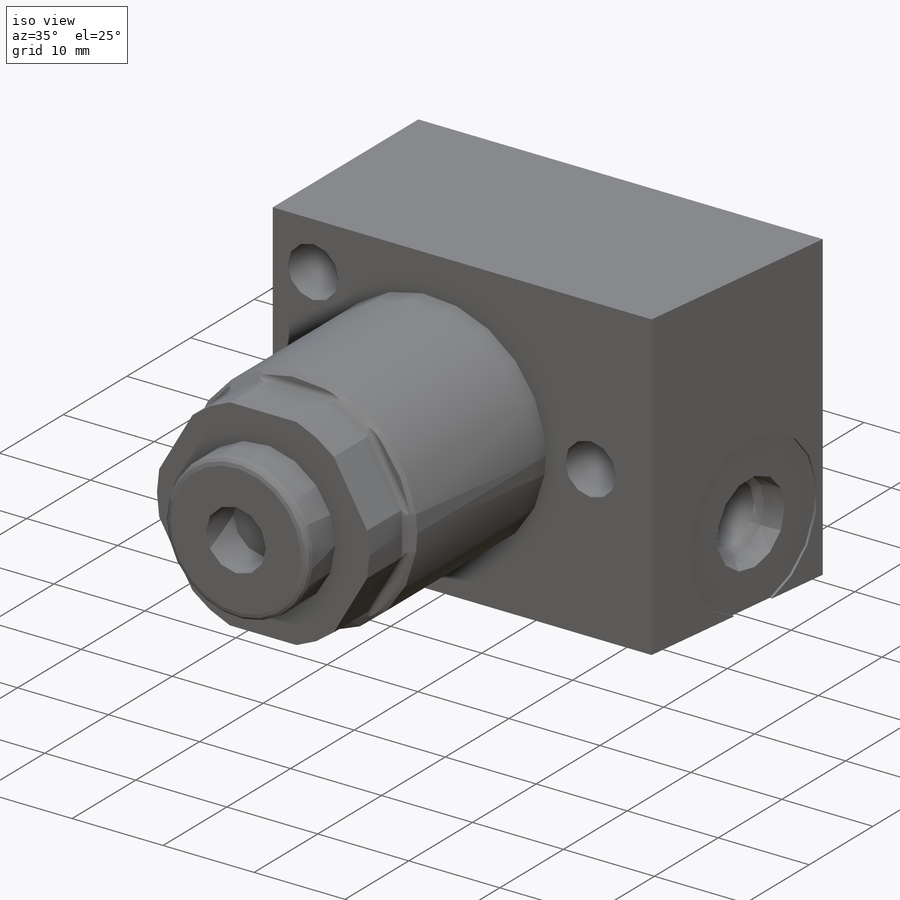
[diagram: iso view]
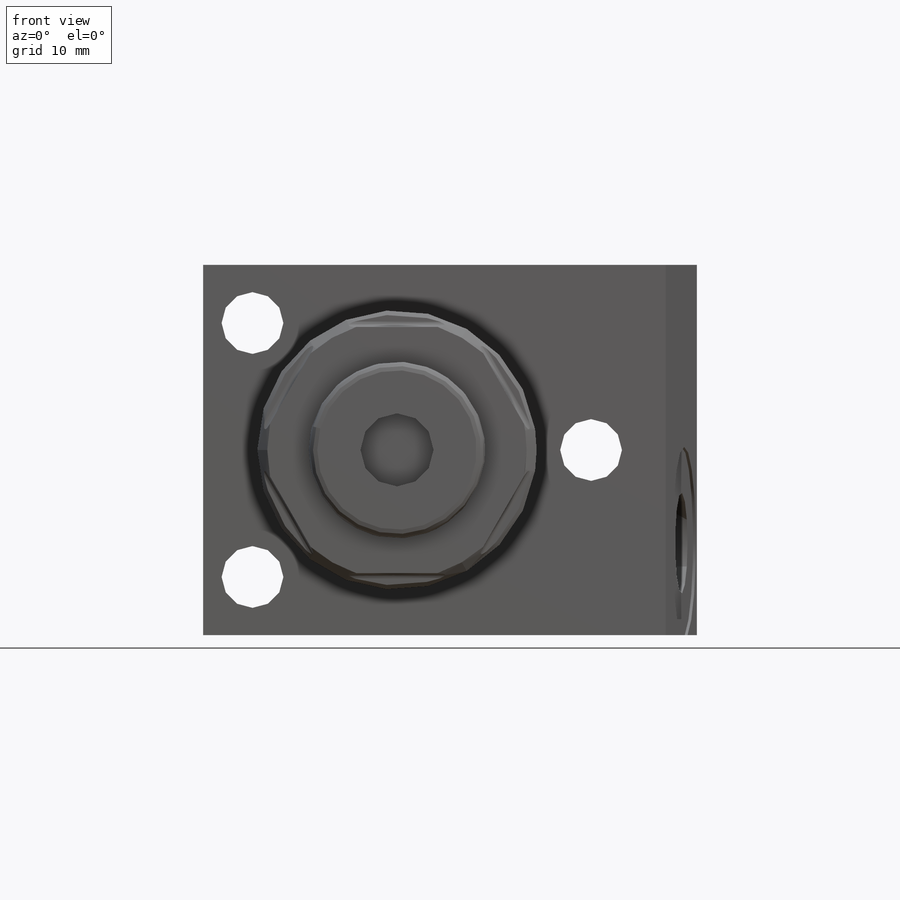
[diagram: front view]
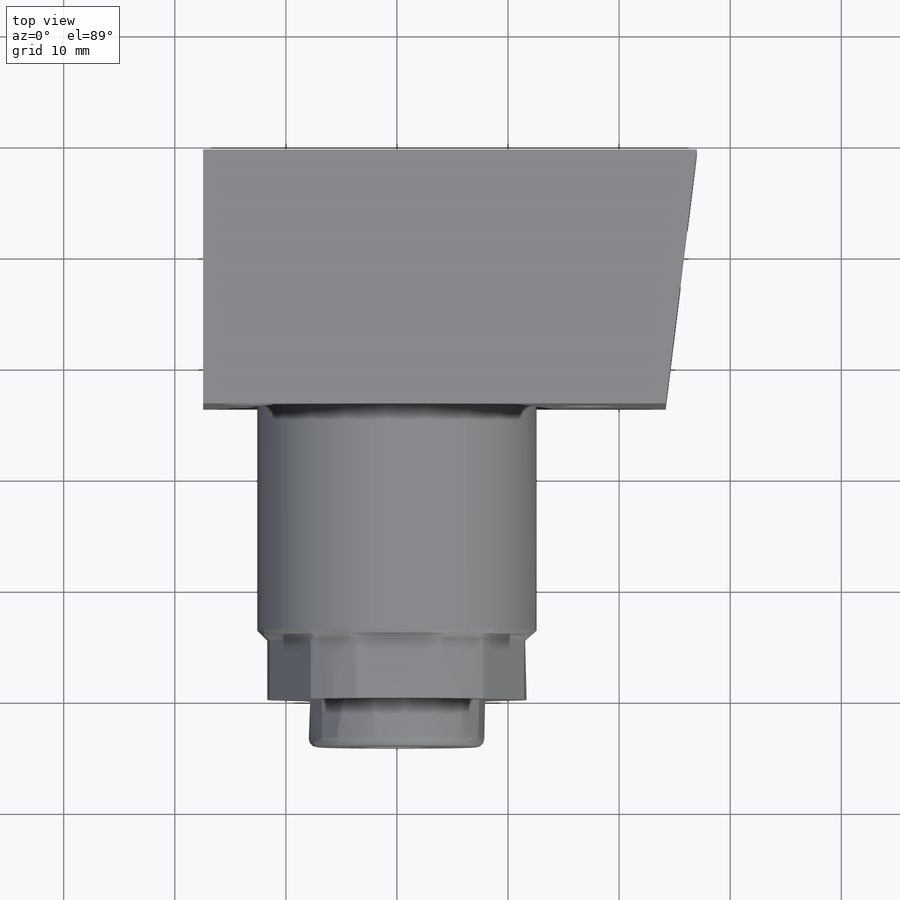
[diagram: top view]
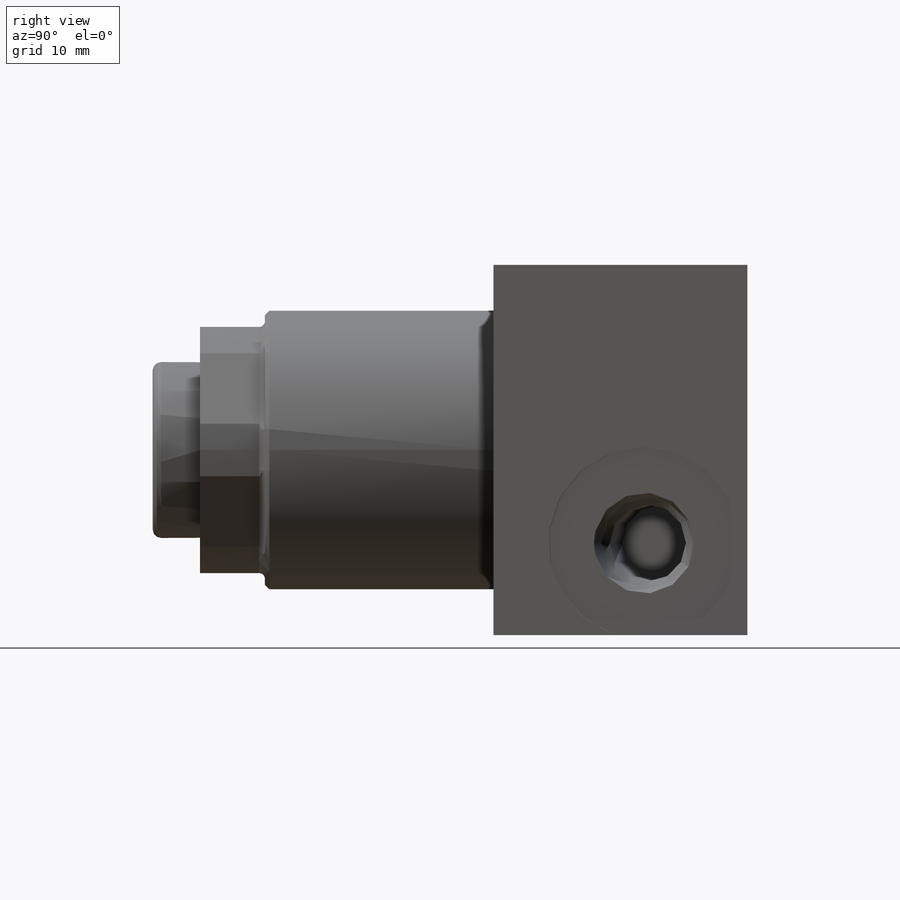
[diagram: right view]
SOLIDWORKS PART (.sldprt)
format: sldprt  version: not decoded by parser v0  size: 316,928 bytes
history: native  units: mm
features: sketch x12, plane x9, cut_revolve x4, extrude x2, cut_extrude x2, revolve x2, material x1, fillet x1, pattern_circular x1, hole x1 (+13 scaffold rows collapsed)
feature tree (48):
  scaffold x13  (default folders/planes/origin — collapsed)
  material  "Alloy Steel"
  plane  "Plane1"
  sketch  "Sketch1"  dims[D1=25.146mm]
  extrude  "Extrude1"  Depth=40.005mm
  plane  "Plane2"
  sketch  "Sketch2"  dims[D1=0.508mm D2=5.842mm D3=22.1615mm]
  cut_extrude  "Cut-Extrude1"  Depth=30.1752mm
  plane  "Plane12"
  sketch  "Sketch10"  dims[c1.D1=5.334mm c1.D2=0.9017mm c2.D2=45.0deg c2.D3=23.3426mm]
  cut_revolve  "Cut-Revolve1"  Angle=360deg
  plane  "Plane13"
  sketch  "Sketch11"  dims[D1=15.875mm D2=4.2672mm]
  revolve  "Revolve1"  Angle=360deg
  plane  "Plane14"
  sketch  "S2D0011"  dims[D1=6.5786mm D2=4.318mm]
  cut_revolve  "Cut-Revolve2"  Angle=360deg
  fillet  "Fillet1"  Radius=0.762mm
  plane  "Plane15"
  sketch  "Sketch13"  dims[c1.D1=9.271mm c1.D2=17.4498mm c1.D3=22.86mm c1.D4=44.45mm c1.D5=~23.031675mm c2.D5=83.0deg]
  extrude  "Extrude2"  Depth=16.66875mm
  sketch  "Sketch14"
  cut_extrude  "Cut-Extrude9"  Depth=0.254mm
  plane  "Plane16"
  sketch  "S2D0002"  dims[D1=12.192mm]
  cut_revolve  "Cut-Revolve3"  Angle=360deg
  plane  "Plane17"
  sketch  "Sketch16"
  cut_revolve  "Cut-Revolve4"  Angle=360deg
  plane  "Plane18"
  sketch  "Sketch17"
  revolve  "Revolve2"  Angle=360deg
  pattern_circular  "CirPattern2"  Count=6 Angle=360deg
  hole  "Hole1"  Diameter=5.5626mm Depth=22.86mm
  sketch  "Sketch19"  dims[D1=17.4752mm D2=22.86mm D3=13.0048mm]
  sketch  "Sketch18"  dims[Diameter=5.5626mm Depth=22.86mm]
decode coverage: 22 of 25 modeling features carry decoded parameters
note: ~ marks probable driven/reference dimensions
note: suppression state not decoded; provenance and decode notes live in map.json
